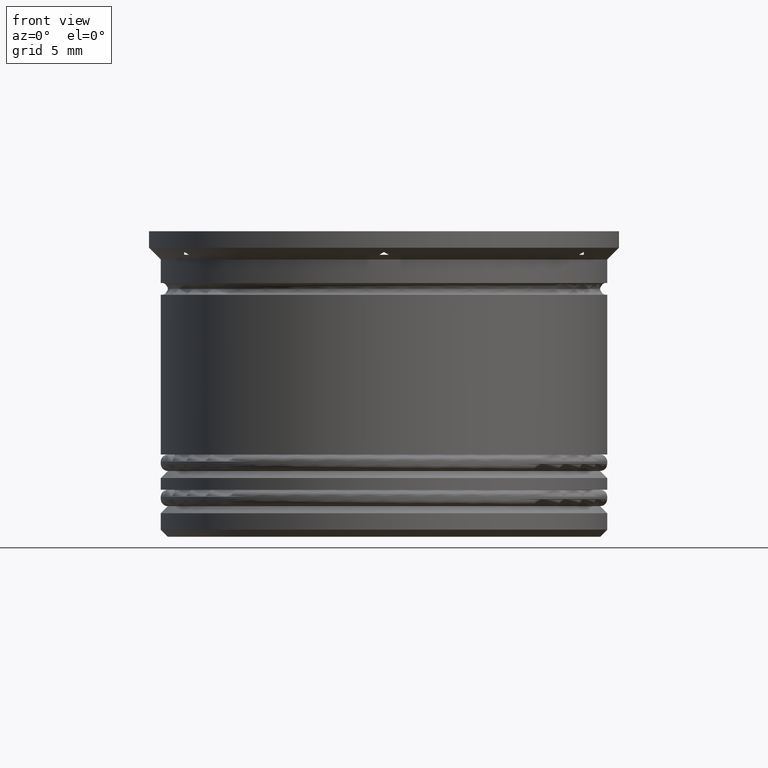
[diagram: clean part render]
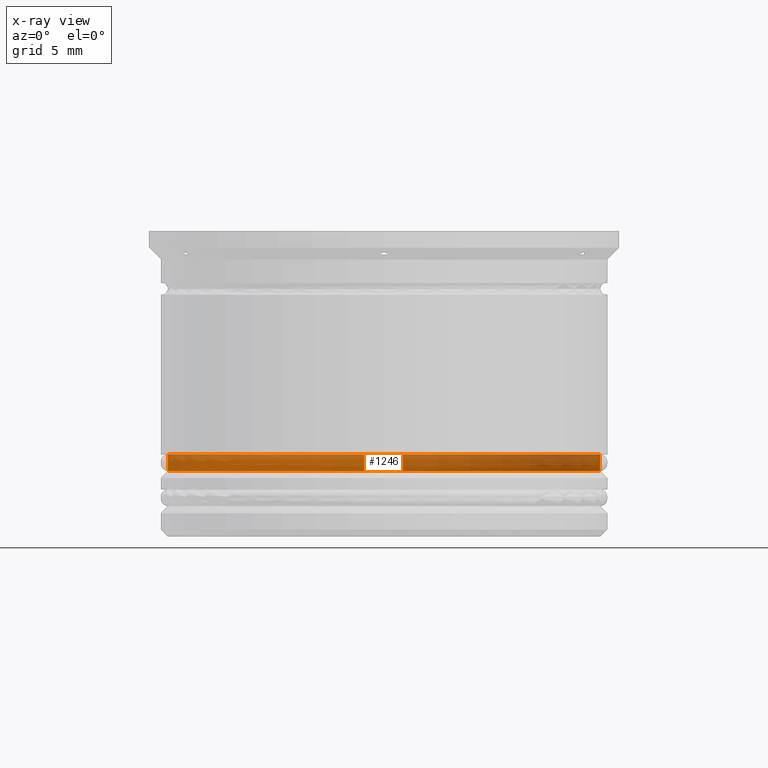
[diagram: x-ray — body ghosted, one internal face saturated and labeled with its STEP entity id]
A machine part, front view, then the same camera in x-ray: the body is ghosted and one INTERNAL B-rep face — a face not visible from any outside direction — is saturated and labeled: STEP entity #1246.
In plain terms, the highlighted cylindrical surface (partial cylindrical patch) has radius 9.2 mm, axis along (-0, -0, 1).
Its self-contained STEP definition (entity closure, byte-faithful):
#50 = ORIENTED_EDGE ( 'NONE', *, *, #163, .F. ) ;
#148 = CARTESIAN_POINT ( 'NONE',  ( 9.199999999999999289, 0.000000000000000000, -9.500000000000000000 ) ) ;
#156 = EDGE_CURVE ( 'NONE', #961, #1067, #1914, .T. ) ;
#159 = ORIENTED_EDGE ( 'NONE', *, *, #598, .F. ) ;
#163 = EDGE_CURVE ( 'NONE', #961, #829, #461, .T. ) ;
#196 = DIRECTION ( 'NONE',  ( -0.000000000000000000, -0.000000000000000000, 1.000000000000000000 ) ) ;
#383 = DIRECTION ( 'NONE',  ( -0.000000000000000000, -0.000000000000000000, 1.000000000000000000 ) ) ;
#411 = DIRECTION ( 'NONE',  ( -0.000000000000000000, -0.000000000000000000, 1.000000000000000000 ) ) ;
#461 = LINE ( 'NONE', #583, #1526 ) ;
#506 = VECTOR ( 'NONE', #196, 1000.000000000000000 ) ;
#549 = LINE ( 'NONE', #1533, #506 ) ;
#575 = DIRECTION ( 'NONE',  ( -0.000000000000000000, -0.000000000000000000, 1.000000000000000000 ) ) ;
#583 = CARTESIAN_POINT ( 'NONE',  ( 9.199999999999999289, 0.000000000000000000, 0.000000000000000000 ) ) ;
#598 = EDGE_CURVE ( 'NONE', #829, #1946, #1569, .T. ) ;
#698 = AXIS2_PLACEMENT_3D ( 'NONE', #2054, #383, #2089 ) ;
#829 = VERTEX_POINT ( 'NONE', #148 ) ;
#846 = AXIS2_PLACEMENT_3D ( 'NONE', #1936, #1144, #1119 ) ;
#959 = CARTESIAN_POINT ( 'NONE',  ( 0.000000000000000000, 0.000000000000000000, -10.20000000000000639 ) ) ;
#961 = VERTEX_POINT ( 'NONE', #1874 ) ;
#967 = FACE_OUTER_BOUND ( 'NONE', #1453, .T. ) ;
#1015 = ORIENTED_EDGE ( 'NONE', *, *, #1386, .T. ) ;
#1067 = VERTEX_POINT ( 'NONE', #1961 ) ;
#1119 = DIRECTION ( 'NONE',  ( 1.000000000000000000, 0.000000000000000000, 0.000000000000000000 ) ) ;
#1144 = DIRECTION ( 'NONE',  ( -0.000000000000000000, -0.000000000000000000, 1.000000000000000000 ) ) ;
#1180 = ORIENTED_EDGE ( 'NONE', *, *, #156, .T. ) ;
#1228 = AXIS2_PLACEMENT_3D ( 'NONE', #959, #575, #1609 ) ;
#1246 = ADVANCED_FACE ( 'NONE', ( #967 ), #1301, .T. ) ;
#1301 = CYLINDRICAL_SURFACE ( 'NONE', #846, 9.199999999999999289 ) ;
#1386 = EDGE_CURVE ( 'NONE', #1067, #1946, #549, .T. ) ;
#1412 = CARTESIAN_POINT ( 'NONE',  ( -9.199999999999999289, 1.126675055215564822E-15, -9.500000000000000000 ) ) ;
#1453 = EDGE_LOOP ( 'NONE', ( #1180, #1015, #159, #50 ) ) ;
#1526 = VECTOR ( 'NONE', #411, 1000.000000000000000 ) ;
#1533 = CARTESIAN_POINT ( 'NONE',  ( -9.199999999999999289, 1.126675055215564822E-15, 0.000000000000000000 ) ) ;
#1569 = CIRCLE ( 'NONE', #698, 9.199999999999999289 ) ;
#1609 = DIRECTION ( 'NONE',  ( -1.000000000000000000, 0.000000000000000000, 0.000000000000000000 ) ) ;
#1874 = CARTESIAN_POINT ( 'NONE',  ( 9.199999999999999289, 0.000000000000000000, -10.20000000000000639 ) ) ;
#1914 = CIRCLE ( 'NONE', #1228, 9.199999999999999289 ) ;
#1936 = CARTESIAN_POINT ( 'NONE',  ( 0.000000000000000000, 0.000000000000000000, 0.000000000000000000 ) ) ;
#1946 = VERTEX_POINT ( 'NONE', #1412 ) ;
#1961 = CARTESIAN_POINT ( 'NONE',  ( -9.199999999999999289, 1.126675055215564822E-15, -10.20000000000000639 ) ) ;
#2054 = CARTESIAN_POINT ( 'NONE',  ( 0.000000000000000000, 0.000000000000000000, -9.500000000000000000 ) ) ;
#2089 = DIRECTION ( 'NONE',  ( 1.000000000000000000, 0.000000000000000000, 0.000000000000000000 ) ) ;